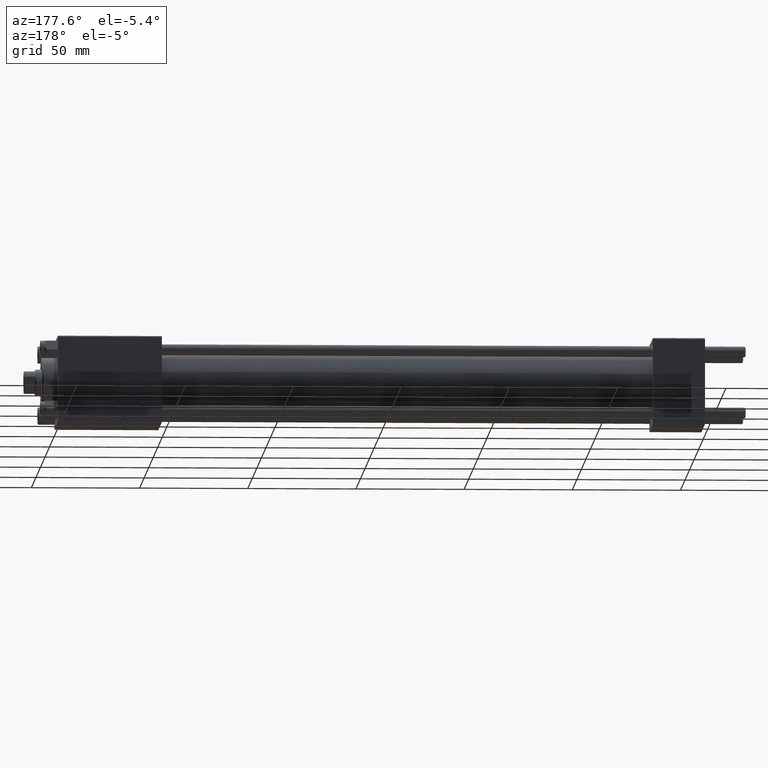
[diagram: clean part render]
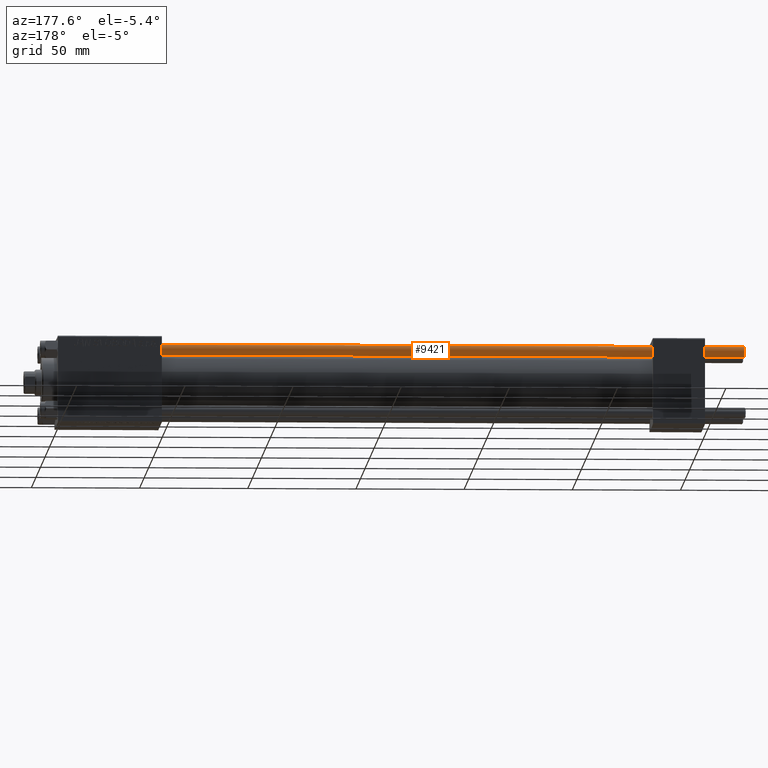
[diagram: same view with one face highlighted and labeled with its STEP entity id]
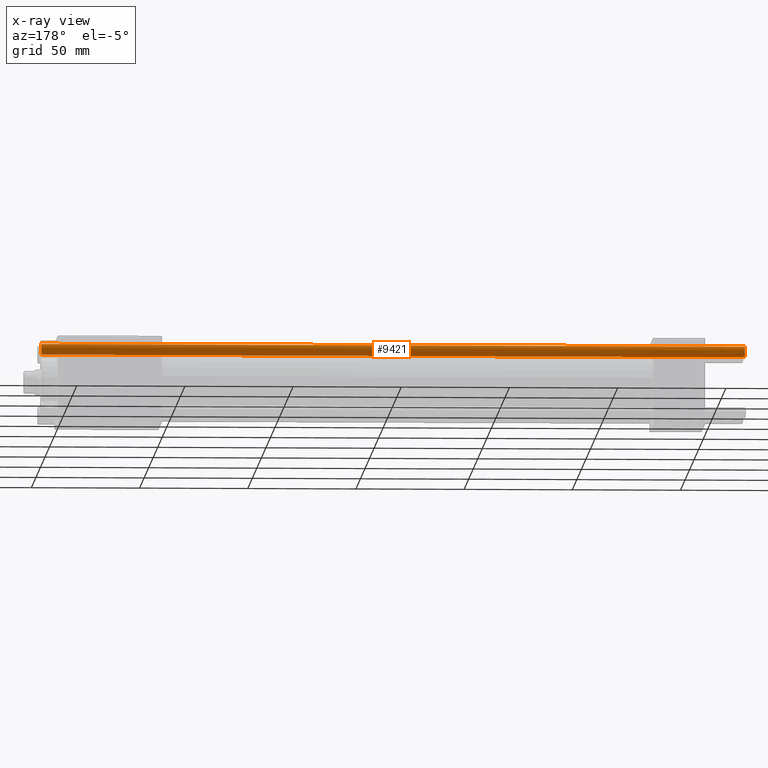
[diagram: x-ray of the same camera — body ghosted, the highlighted face saturated]
A machine part, auxiliary view. The second image highlights one B-rep face of the part: STEP entity #9421.
The next image is the same camera in x-ray: the body ghosted, the highlighted face saturated — about 0% of this face is hidden behind the body in this view.
In plain terms, the highlighted cylindrical surface (edge-blend (fillet) strip) has radius 2.5 mm, axis along (-1, -0, -0).
Its self-contained STEP definition (entity closure, byte-faithful):
#1957 = DIRECTION ( 'NONE',  ( -0.000000000000000000, -0.000000000000000000, -1.000000000000000000 ) ) ;
#3002 = ORIENTED_EDGE ( 'NONE', *, *, #48974, .T. ) ;
#7045 = AXIS2_PLACEMENT_3D ( 'NONE', #9634, #36900, #32120 ) ;
#9049 = LINE ( 'NONE', #28000, #12536 ) ;
#9421 = ADVANCED_FACE ( 'NONE', ( #26411 ), #22635, .T. ) ;
#9634 = CARTESIAN_POINT ( 'NONE',  ( 0.000000000000000000, 0.000000000000000000, 326.0000000000000000 ) ) ;
#10930 = CARTESIAN_POINT ( 'NONE',  ( 2.500000000000000000, 3.061616997868383141E-16, 0.4999999999999449329 ) ) ;
#12536 = VECTOR ( 'NONE', #1957, 1000.000000000000000 ) ;
#13120 = VERTEX_POINT ( 'NONE', #18130 ) ;
#14804 = DIRECTION ( 'NONE',  ( -0.000000000000000000, -0.000000000000000000, 1.000000000000000000 ) ) ;
#14891 = CARTESIAN_POINT ( 'NONE',  ( 2.500000000000000000, 3.061616997868383141E-16, 325.5000000000000000 ) ) ;
#18038 = AXIS2_PLACEMENT_3D ( 'NONE', #45285, #26336, #25591 ) ;
#18130 = CARTESIAN_POINT ( 'NONE',  ( -2.500000000000000000, 0.000000000000000000, 325.5000000000000000 ) ) ;
#18586 = CARTESIAN_POINT ( 'NONE',  ( 0.000000000000000000, 0.000000000000000000, 0.4999999999999449329 ) ) ;
#18647 = ORIENTED_EDGE ( 'NONE', *, *, #44143, .T. ) ;
#22498 = VECTOR ( 'NONE', #48901, 1000.000000000000000 ) ;
#22635 = CYLINDRICAL_SURFACE ( 'NONE', #7045, 2.500000000000000000 ) ;
#22891 = CIRCLE ( 'NONE', #33365, 2.500000000000000000 ) ;
#25335 = ORIENTED_EDGE ( 'NONE', *, *, #41168, .T. ) ;
#25591 = DIRECTION ( 'NONE',  ( 1.000000000000000000, 0.000000000000000000, 0.000000000000000000 ) ) ;
#26336 = DIRECTION ( 'NONE',  ( 0.000000000000000000, 0.000000000000000000, -1.000000000000000000 ) ) ;
#26411 = FACE_OUTER_BOUND ( 'NONE', #48696, .T. ) ;
#27022 = VERTEX_POINT ( 'NONE', #14891 ) ;
#27133 = VERTEX_POINT ( 'NONE', #10930 ) ;
#28000 = CARTESIAN_POINT ( 'NONE',  ( 2.500000000000000000, 3.061616997868383141E-16, 326.0000000000000000 ) ) ;
#28635 = EDGE_CURVE ( 'NONE', #13120, #32420, #29453, .T. ) ;
#29453 = LINE ( 'NONE', #32735, #22498 ) ;
#32120 = DIRECTION ( 'NONE',  ( -1.000000000000000000, 0.000000000000000000, 0.000000000000000000 ) ) ;
#32420 = VERTEX_POINT ( 'NONE', #36433 ) ;
#32735 = CARTESIAN_POINT ( 'NONE',  ( -2.500000000000000000, 0.000000000000000000, 326.0000000000000000 ) ) ;
#33365 = AXIS2_PLACEMENT_3D ( 'NONE', #18586, #14804, #42321 ) ;
#36433 = CARTESIAN_POINT ( 'NONE',  ( -2.500000000000000000, 0.000000000000000000, 0.4999999999999449329 ) ) ;
#36900 = DIRECTION ( 'NONE',  ( -0.000000000000000000, -0.000000000000000000, -1.000000000000000000 ) ) ;
#40546 = ORIENTED_EDGE ( 'NONE', *, *, #28635, .F. ) ;
#41168 = EDGE_CURVE ( 'NONE', #13120, #27022, #49498, .T. ) ;
#42321 = DIRECTION ( 'NONE',  ( 1.000000000000000000, 0.000000000000000000, 0.000000000000000000 ) ) ;
#44143 = EDGE_CURVE ( 'NONE', #27133, #32420, #22891, .T. ) ;
#45285 = CARTESIAN_POINT ( 'NONE',  ( 0.000000000000000000, 0.000000000000000000, 325.5000000000000000 ) ) ;
#48696 = EDGE_LOOP ( 'NONE', ( #25335, #3002, #18647, #40546 ) ) ;
#48901 = DIRECTION ( 'NONE',  ( -0.000000000000000000, -0.000000000000000000, -1.000000000000000000 ) ) ;
#48974 = EDGE_CURVE ( 'NONE', #27022, #27133, #9049, .T. ) ;
#49498 = CIRCLE ( 'NONE', #18038, 2.500000000000000000 ) ;